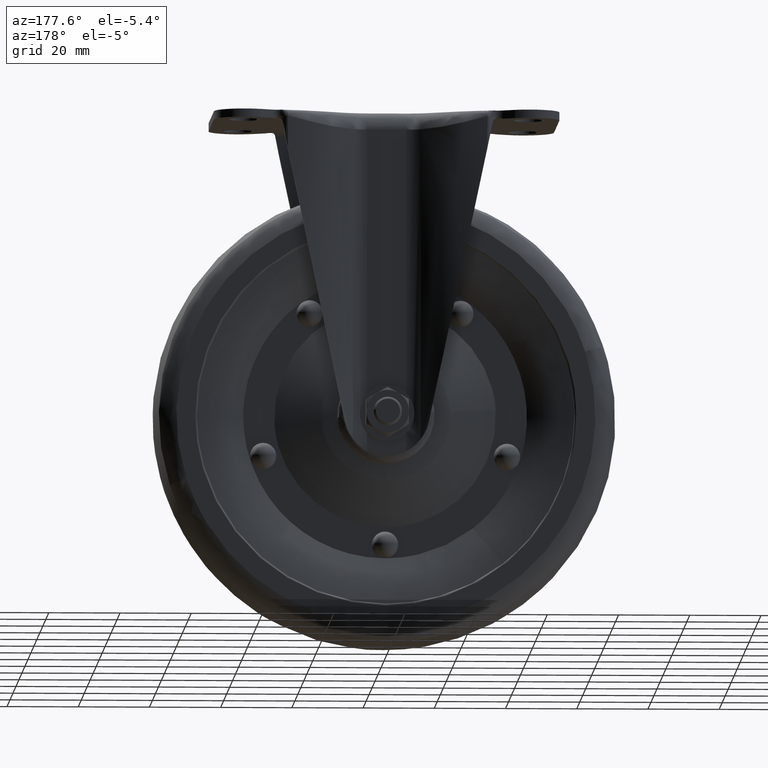
[diagram: clean part render]
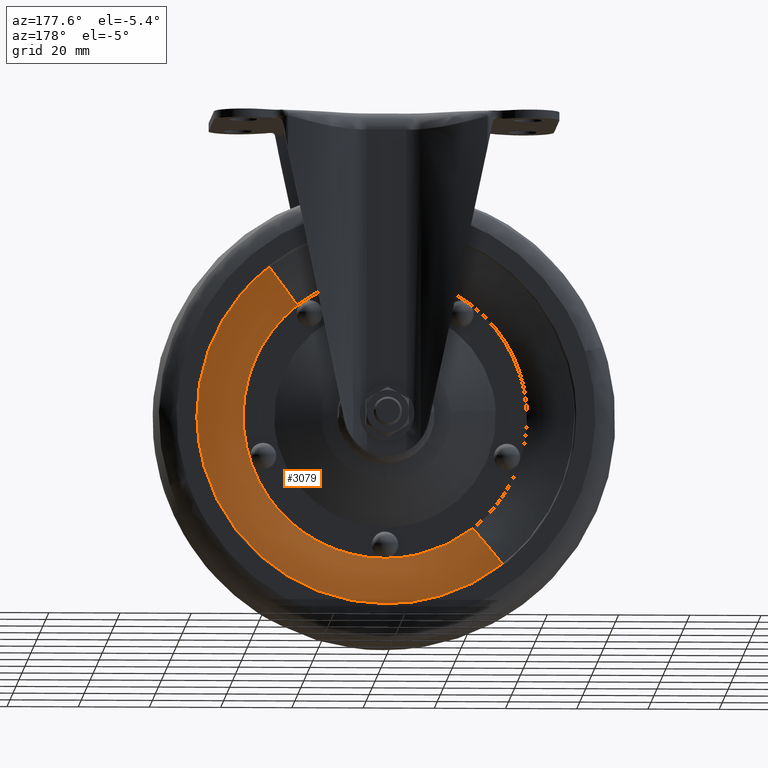
[diagram: same view with one face highlighted and labeled with its STEP entity id]
A machine part, auxiliary view. The second image highlights one B-rep face of the part: STEP entity #3079.
In plain terms, the highlighted face is a freeform B-spline surface patch.
Its self-contained STEP definition (entity closure, byte-faithful):
#2860=CARTESIAN_POINT('',(-24.616286335125402,7.500000000097264,-116.326697484902300));
#2861=VERTEX_POINT('',#2860);
#2862=CARTESIAN_POINT('',(0.0,7.500000000000000,-124.841228999999900));
#2863=VERTEX_POINT('',#2862);
#2864=CARTESIAN_POINT('',(-24.616286335125398,7.500000000097264,-116.326697484902330));
#2865=CARTESIAN_POINT('',(-13.780689552852143,7.500000000048631,-124.841229000064230));
#2866=CARTESIAN_POINT('',(0.0,7.500000000000000,-124.841228999999900));
#2874=(BOUNDED_CURVE()B_SPLINE_CURVE(2,(#2864,#2865,#2866),.UNSPECIFIED.,.F.,.U.)B_SPLINE_CURVE_WITH_KNOTS((3,3),(0.893034553219460,1.0),.UNSPECIFIED.)CURVE()GEOMETRIC_REPRESENTATION_ITEM()RATIONAL_B_SPLINE_CURVE((0.856601777381118,0.874682183962514,1.0))REPRESENTATION_ITEM(''));
#2875=EDGE_CURVE('',#2861,#2863,#2874,.T.);
#2904=CARTESIAN_POINT('',(24.616286335125402,7.500000000097264,-53.673302515097660));
#2905=VERTEX_POINT('',#2904);
#2919=CARTESIAN_POINT('',(0.0,7.500000000000000,-124.841228999999900));
#2920=CARTESIAN_POINT('',(2.761130546861855,7.500000000001164,-124.841681399695700));
#2921=CARTESIAN_POINT('',(7.448419768660951,7.500000000003754,-124.351854960393990));
#2922=CARTESIAN_POINT('',(14.377514339762300,7.500000000009144,-122.356258875635600));
#2923=CARTESIAN_POINT('',(19.902157099538289,7.500000000014524,-119.706301599949700));
#2924=CARTESIAN_POINT('',(24.613831078111250,7.500000000020856,-116.452093025737000));
#2925=CARTESIAN_POINT('',(28.464475908447479,7.500000000026295,-113.038847869611500));
#2926=CARTESIAN_POINT('',(32.263415929164204,7.500000000033653,-108.663608661175100));
#2927=CARTESIAN_POINT('',(35.220285907384003,7.500000000040318,-103.898893382916500));
#2928=CARTESIAN_POINT('',(37.462835135151543,7.500000000047551,-98.844645471978055));
#2929=CARTESIAN_POINT('',(38.761615654588283,7.500000000053257,-94.597244497632602));
#2930=CARTESIAN_POINT('',(39.570198031170293,7.500000000059012,-90.170875517012107));
#2931=CARTESIAN_POINT('',(39.931818523207362,7.500000000064595,-85.748746605686350));
#2932=CARTESIAN_POINT('',(39.724584069399477,7.500000000070873,-80.475377779904292));
#2933=CARTESIAN_POINT('',(38.685679485424849,7.500000000077284,-74.903824204249631));
#2934=CARTESIAN_POINT('',(36.936799994296017,7.500000000082798,-69.788329992948917));
#2935=CARTESIAN_POINT('',(34.420656146578722,7.500000000087921,-64.646419997363139));
#2936=CARTESIAN_POINT('',(30.584031643658680,7.500000000093441,-59.069330835469458));
#2937=CARTESIAN_POINT('',(26.838118295614791,7.500000000095851,-55.418641447432563));
#2938=CARTESIAN_POINT('',(24.616286335125402,7.500000000097264,-53.673302515097660));
#2939=B_SPLINE_CURVE_WITH_KNOTS('',3,(#2919,#2920,#2921,#2922,#2923,#2924,#2925,#2926,#2927,#2928,#2929,#2930,#2931,#2932,#2933,#2934,#2935,#2936,#2937,#2938),.UNSPECIFIED.,.F.,.U.,(4,1,1,1,1,1,1,1,1,1,1,1,1,1,1,1,1,4),(2.341906E-009,8.283290204296932,14.062479362958101,21.575296348888131,26.583879609453529,31.207187514787321,36.986321398477102,43.921280628376273,47.966609998456967,53.553140653207826,57.213251723101543,61.451211761483087,66.845008534183705,73.009352218631349,78.403183297568518,83.026476203708768,90.154031439816208,98.630046995214229),.UNSPECIFIED.);
#2940=EDGE_CURVE('',#2863,#2905,#2939,.T.);
#2971=CARTESIAN_POINT('',(-25.111641489828525,7.138010930496952,-115.181265373225530));
#2972=CARTESIAN_POINT('',(-24.682792543880037,7.138010930496952,-115.518251691462370));
#2973=CARTESIAN_POINT('',(6.610266729992407,7.138010930496952,-140.108105370001910));
#2974=CARTESIAN_POINT('',(30.859186049997181,7.138010930496952,-109.248919320004730));
#2975=CARTESIAN_POINT('',(55.108105370001951,7.138010930496952,-78.389733270007596));
#2976=CARTESIAN_POINT('',(23.815046096153235,7.138010930496952,-53.799879591486672));
#2977=CARTESIAN_POINT('',(23.386197150227929,7.138010930496951,-53.462893273268065));
#2978=CARTESIAN_POINT('',(-29.381071745593246,11.295320468392275,-120.312622779467060));
#2979=CARTESIAN_POINT('',(-28.879310773335092,11.295320468392282,-120.706902826727570));
#2980=CARTESIAN_POINT('',(7.734130846447553,11.295320468392278,-149.477473457701680));
#2981=CARTESIAN_POINT('',(36.105802152074624,11.295320468392280,-113.371671305627070));
#2982=CARTESIAN_POINT('',(64.477473457701691,11.295320468392278,-77.265869153552472));
#2983=CARTESIAN_POINT('',(27.864031837946836,11.295320468392275,-48.495298522600173));
#2984=CARTESIAN_POINT('',(27.362270865715800,11.295320468392280,-48.101018475360952));
#2985=CARTESIAN_POINT('',(-34.386471227871311,12.076320639516085,-126.328529391339900));
#2986=CARTESIAN_POINT('',(-33.799229571568844,12.076320639516094,-126.789979525570690));
#2987=CARTESIAN_POINT('',(9.051727933098613,12.076320639516092,-160.461943835715830));
#2988=CARTESIAN_POINT('',(42.256835884407238,12.076320639516094,-118.205107951308580));
#2989=CARTESIAN_POINT('',(75.461943835715871,12.076320639516092,-75.948272066901424));
#2990=CARTESIAN_POINT('',(32.610986331080909,12.076320639516085,-42.276307756781769));
#2991=CARTESIAN_POINT('',(32.023744674810196,12.076320639516087,-41.814857622575921));
#2999=(BOUNDED_SURFACE()B_SPLINE_SURFACE(2,2,((#2971,#2978,#2985),(#2972,#2979,#2986),(#2973,#2980,#2987),(#2974,#2981,#2988),(#2975,#2982,#2989),(#2976,#2983,#2990),(#2977,#2984,#2991)),.UNSPECIFIED.,.F.,.F.,.U.)B_SPLINE_SURFACE_WITH_KNOTS((3,1,2,1,3),(3,3),(0.0,1.780858403784338,90.823778588851113,179.866698773917900,181.647557177604200),(0.0,15.521290698612230),.UNSPECIFIED.)GEOMETRIC_REPRESENTATION_ITEM()RATIONAL_B_SPLINE_SURFACE(((0.959512317933361,0.934323736496658,0.959154877604027),(0.953956712869276,0.928913974073643,0.953601342130157),(0.670620854613884,0.653016090512496,0.670371032975693),(0.948401107805191,0.923504211650628,0.948047806656286),(0.670620854613884,0.653016090512496,0.670371032975693),(0.953956712868970,0.928913974073346,0.953601342129851),(0.959512317932749,0.934323736496063,0.959154877603416)))REPRESENTATION_ITEM('')SURFACE());
#3000=CARTESIAN_POINT('',(-32.777452474471453,12.000000000651751,-126.712601324863400));
#3001=VERTEX_POINT('',#3000);
#3002=CARTESIAN_POINT('',(0.0,12.000000000000011,-138.050000000000010));
#3003=VERTEX_POINT('',#3002);
#3004=CARTESIAN_POINT('',(-32.777452474471453,12.000000000651744,-126.712601324863360));
#3005=CARTESIAN_POINT('',(-18.349473626309312,12.000000000215190,-138.050000000011980));
#3006=CARTESIAN_POINT('',(0.0,12.000000000000011,-138.050000000000010));
#3014=(BOUNDED_CURVE()B_SPLINE_CURVE(2,(#3004,#3005,#3006),.UNSPECIFIED.,.F.,.U.)B_SPLINE_CURVE_WITH_KNOTS((3,3),(0.893034553219620,1.0),.UNSPECIFIED.)CURVE()GEOMETRIC_REPRESENTATION_ITEM()RATIONAL_B_SPLINE_CURVE((0.856601777381172,0.874682183962701,1.0))REPRESENTATION_ITEM(''));
#3015=EDGE_CURVE('',#3001,#3003,#3014,.T.);
#3016=ORIENTED_EDGE('',*,*,#3015,.F.);
#3017=CARTESIAN_POINT('',(-24.616286335125402,7.500000000097264,-116.326697484902380));
#3018=CARTESIAN_POINT('',(-28.403157764715012,11.145343865894812,-121.145871834560140));
#3019=CARTESIAN_POINT('',(-32.777452474471453,12.000000000651745,-126.712601324863400));
#3027=(BOUNDED_CURVE()B_SPLINE_CURVE(2,(#3017,#3018,#3019),.UNSPECIFIED.,.F.,.U.)B_SPLINE_CURVE_WITH_KNOTS((3,3),(-1.402259537447748,-0.604014507781142),.UNSPECIFIED.)CURVE()GEOMETRIC_REPRESENTATION_ITEM()RATIONAL_B_SPLINE_CURVE((0.946241772886023,0.925647500487458,0.945920563854400))REPRESENTATION_ITEM(''));
#3028=EDGE_CURVE('',#2861,#3001,#3027,.T.);
#3029=ORIENTED_EDGE('',*,*,#3028,.F.);
#3030=ORIENTED_EDGE('',*,*,#2875,.T.);
#3031=ORIENTED_EDGE('',*,*,#2940,.T.);
#3032=CARTESIAN_POINT('',(32.777452474471431,12.000000000651740,-43.287398675136643));
#3033=VERTEX_POINT('',#3032);
#3034=CARTESIAN_POINT('',(24.616286335125395,7.500000000097264,-53.673302515097667));
#3035=CARTESIAN_POINT('',(28.403157764714994,11.145343865894800,-48.854128165439910));
#3036=CARTESIAN_POINT('',(32.777452474471424,12.000000000651747,-43.287398675136643));
#3044=(BOUNDED_CURVE()B_SPLINE_CURVE(2,(#3034,#3035,#3036),.UNSPECIFIED.,.F.,.U.)B_SPLINE_CURVE_WITH_KNOTS((3,3),(-1.402259537447747,-0.604014507781143),.UNSPECIFIED.)CURVE()GEOMETRIC_REPRESENTATION_ITEM()RATIONAL_B_SPLINE_CURVE((0.946241772886023,0.925647500487458,0.945920563854400))REPRESENTATION_ITEM(''));
#3045=EDGE_CURVE('',#2905,#3033,#3044,.T.);
#3046=ORIENTED_EDGE('',*,*,#3045,.T.);
#3047=CARTESIAN_POINT('',(53.045811395012272,12.000000003146519,-85.666628415824846));
#3048=VERTEX_POINT('',#3047);
#3049=CARTESIAN_POINT('',(53.045811395012272,12.000000003146521,-85.666628415824846));
#3050=CARTESIAN_POINT('',(53.050000000000111,12.000000003132667,-85.333327366976093));
#3051=CARTESIAN_POINT('',(53.050000000000239,12.000000003118661,-84.999999999999716));
#3052=CARTESIAN_POINT('',(53.050000000009540,12.000000002034982,-59.217416030815421));
#3053=CARTESIAN_POINT('',(32.777452474471431,12.000000000651742,-43.287398675136643));
#3061=(BOUNDED_CURVE()B_SPLINE_CURVE(2,(#3049,#3050,#3051,#3052,#3053),.UNSPECIFIED.,.F.,.U.)B_SPLINE_CURVE_WITH_KNOTS((3,2,3),(0.247784295921685,0.250000000000000,0.393034553219620),.UNSPECIFIED.)CURVE()GEOMETRIC_REPRESENTATION_ITEM()RATIONAL_B_SPLINE_CURVE((0.994854295643913,0.997404141202257,1.0,0.832424597223846,0.856601777381172))REPRESENTATION_ITEM(''));
#3062=EDGE_CURVE('',#3048,#3033,#3061,.T.);
#3063=ORIENTED_EDGE('',*,*,#3062,.F.);
#3064=CARTESIAN_POINT('',(0.0,12.000000000000011,-138.050000000000010));
#3065=CARTESIAN_POINT('',(52.387507881570187,12.000000001573270,-138.050000000000040));
#3066=CARTESIAN_POINT('',(53.045811395012272,12.000000003146521,-85.666628415824846));
#3074=(BOUNDED_CURVE()B_SPLINE_CURVE(2,(#3064,#3065,#3066),.UNSPECIFIED.,.F.,.U.)B_SPLINE_CURVE_WITH_KNOTS((3,3),(0.0,0.247784295921685),.UNSPECIFIED.)CURVE()GEOMETRIC_REPRESENTATION_ITEM()RATIONAL_B_SPLINE_CURVE((1.0,0.709702639984290,0.994854295643913))REPRESENTATION_ITEM(''));
#3075=EDGE_CURVE('',#3003,#3048,#3074,.T.);
#3076=ORIENTED_EDGE('',*,*,#3075,.F.);
#3077=EDGE_LOOP('',(#3016,#3029,#3030,#3031,#3046,#3063,#3076));
#3078=FACE_OUTER_BOUND('',#3077,.T.);
#3079=ADVANCED_FACE('',(#3078),#2999,.T.);